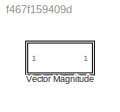
MODEL slx_f467f159409d
KIND library
CONFIG AbsTol = auto
CONFIG EnableMultiTasking = off
CONFIG FixedStep = auto
CONFIG MaxStep = auto
CONFIG MinStep = auto
CONFIG RelTol = 1e-3
CONFIG SampleTimeConstraint = Unconstrained
CONFIG Solver = VariableStepAuto
CONFIG SolverName = VariableStepAuto
CONFIG StartTime = 0.0
CONFIG StopTime = 10.0
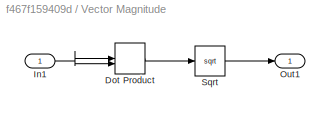
BLOCK [SubSystem] Vector Magnitude
  Ports = [1, 1]
  RequestExecContextInheritance = off
BLOCK [DotProduct] Vector Magnitude/Dot Product
  OutDataTypeStr = Inherit: Inherit via internal rule
BLOCK [Inport] Vector Magnitude/In1
BLOCK [Outport] Vector Magnitude/Out1
BLOCK [Sqrt] Vector Magnitude/Sqrt
LINE Vector Magnitude/Dot Product:1 -> Vector Magnitude/Sqrt:1
NET Vector Magnitude/In1:1 -> Vector Magnitude/Dot Product:1, Vector Magnitude/Dot Product:2
LINE Vector Magnitude/Sqrt:1 -> Vector Magnitude/Out1:1
note: NET lines group one-source signal fan-out (src -> all destinations, sorted); 1:1 wires keep LINE
